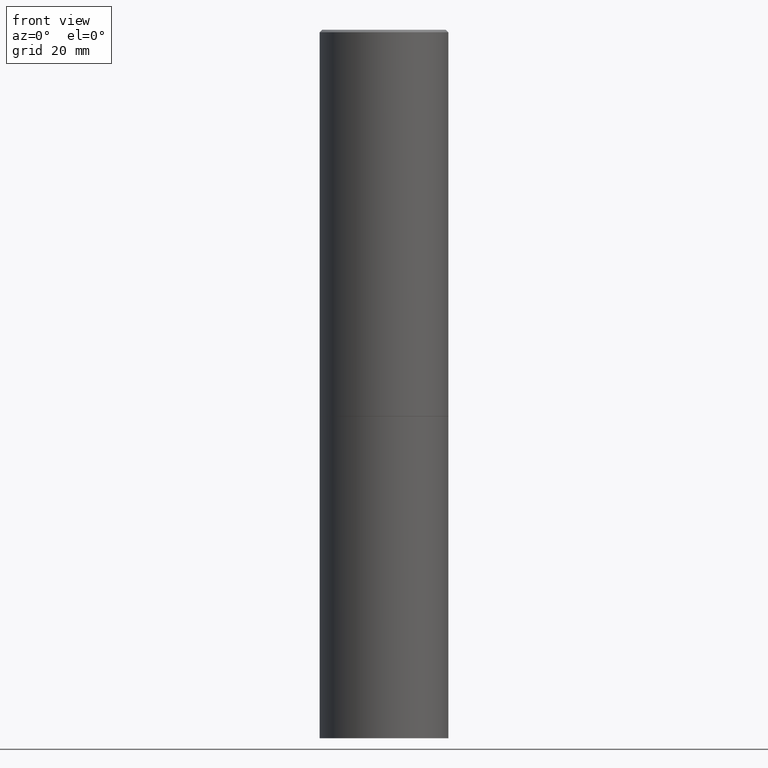
[diagram: clean part render]
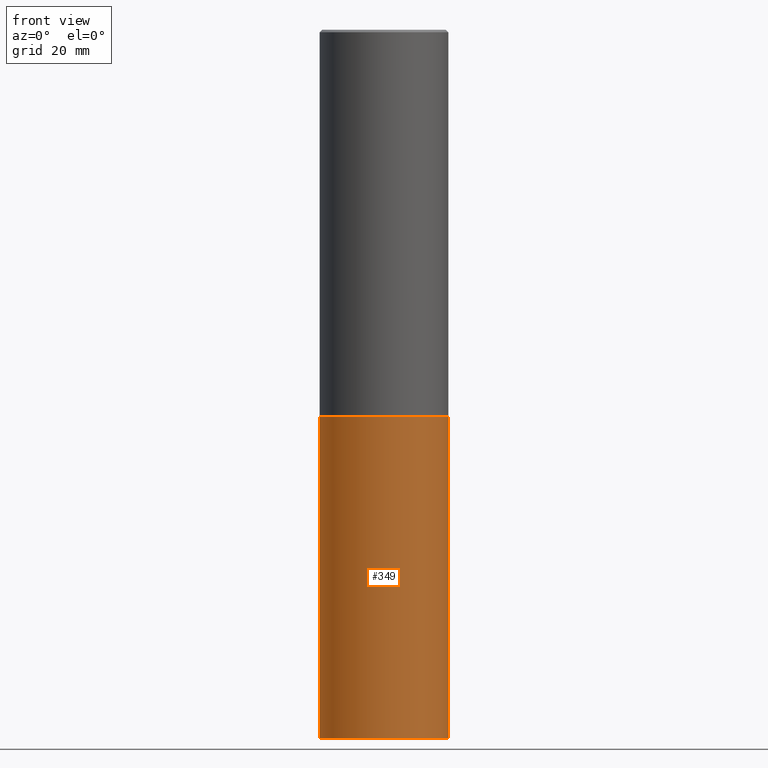
[diagram: same view with one face highlighted and labeled with its STEP entity id]
A machine part, front view. The second image highlights one B-rep face of the part: STEP entity #349.
In plain terms, the highlighted cylindrical surface (partial cylindrical patch) has radius 12.7 mm, axis along (-0, 0, 1).
Its self-contained STEP definition (entity closure, byte-faithful):
#5 = CYLINDRICAL_SURFACE ( 'NONE', #235, 0.5000000000000000000 ) ;
#6 = VECTOR ( 'NONE', #311, 39.37007874015748143 ) ;
#10 = VECTOR ( 'NONE', #57, 39.37007874015748143 ) ;
#16 = EDGE_LOOP ( 'NONE', ( #334, #316, #301, #71 ) ) ;
#28 = EDGE_CURVE ( 'NONE', #213, #69, #215, .T. ) ;
#45 = EDGE_CURVE ( 'NONE', #272, #239, #206, .T. ) ;
#54 = DIRECTION ( 'NONE',  ( -2.445468806185136597E-29, 3.491481338843145583E-15, 1.000000000000000000 ) ) ;
#57 = DIRECTION ( 'NONE',  ( -2.445468806185136877E-29, 3.491481338843145188E-15, 1.000000000000000000 ) ) ;
#59 = DIRECTION ( 'NONE',  ( -2.445468806185136597E-29, 3.491481338843145583E-15, 1.000000000000000000 ) ) ;
#65 = CARTESIAN_POINT ( 'NONE',  ( 0.000000000000000000, 0.000000000000000000, 0.000000000000000000 ) ) ;
#69 = VERTEX_POINT ( 'NONE', #133 ) ;
#71 = ORIENTED_EDGE ( 'NONE', *, *, #119, .F. ) ;
#105 = DIRECTION ( 'NONE',  ( -2.445468806185136597E-29, 3.491481338843145583E-15, 1.000000000000000000 ) ) ;
#106 = CARTESIAN_POINT ( 'NONE',  ( -0.5000000000000000000, -1.128608201128286632E-14, -5.500000000000000000 ) ) ;
#114 = AXIS2_PLACEMENT_3D ( 'NONE', #238, #54, #138 ) ;
#117 = DIRECTION ( 'NONE',  ( 1.000000000000000000, -6.982962677686266711E-15, 4.876176775795935793E-29 ) ) ;
#119 = EDGE_CURVE ( 'NONE', #239, #69, #282, .T. ) ;
#133 = CARTESIAN_POINT ( 'NONE',  ( 0.5000000000000000000, -1.396592535537256813E-14, -2.999999999999999556 ) ) ;
#138 = DIRECTION ( 'NONE',  ( 1.000000000000000000, -6.982962677686262766E-15, 0.000000000000000000 ) ) ;
#168 = CARTESIAN_POINT ( 'NONE',  ( -0.5000000000000000000, -1.128608201128286632E-14, -2.999999999999999556 ) ) ;
#183 = CARTESIAN_POINT ( 'NONE',  ( 7.336406418555408669E-29, -1.047444401652943478E-14, -2.999999999999999556 ) ) ;
#200 = FACE_OUTER_BOUND ( 'NONE', #16, .T. ) ;
#206 = LINE ( 'NONE', #259, #6 ) ;
#209 = DIRECTION ( 'NONE',  ( 1.000000000000000000, -6.982962677686266711E-15, 0.000000000000000000 ) ) ;
#213 = VERTEX_POINT ( 'NONE', #266 ) ;
#215 = LINE ( 'NONE', #303, #10 ) ;
#235 = AXIS2_PLACEMENT_3D ( 'NONE', #65, #59, #117 ) ;
#238 = CARTESIAN_POINT ( 'NONE',  ( 1.345007843401824904E-28, -1.920314736363729972E-14, -5.500000000000000000 ) ) ;
#239 = VERTEX_POINT ( 'NONE', #168 ) ;
#256 = EDGE_CURVE ( 'NONE', #272, #213, #261, .T. ) ;
#259 = CARTESIAN_POINT ( 'NONE',  ( -0.5000000000000000000, 3.552713678800500929E-15, -2.459467545127452891E-29 ) ) ;
#261 = CIRCLE ( 'NONE', #114, 0.5000000000000000000 ) ;
#266 = CARTESIAN_POINT ( 'NONE',  ( 0.5000000000000000000, -2.269462870248043307E-14, -5.500000000000000000 ) ) ;
#272 = VERTEX_POINT ( 'NONE', #106 ) ;
#282 = CIRCLE ( 'NONE', #293, 0.5000000000000000000 ) ;
#293 = AXIS2_PLACEMENT_3D ( 'NONE', #183, #105, #209 ) ;
#301 = ORIENTED_EDGE ( 'NONE', *, *, #28, .T. ) ;
#303 = CARTESIAN_POINT ( 'NONE',  ( 0.5000000000000000000, -3.491481338843133355E-15, 2.438088387897967896E-29 ) ) ;
#311 = DIRECTION ( 'NONE',  ( -2.445468806185136877E-29, 3.491481338843145188E-15, 1.000000000000000000 ) ) ;
#316 = ORIENTED_EDGE ( 'NONE', *, *, #256, .T. ) ;
#334 = ORIENTED_EDGE ( 'NONE', *, *, #45, .F. ) ;
#349 = ADVANCED_FACE ( 'NONE', ( #200 ), #5, .T. ) ;